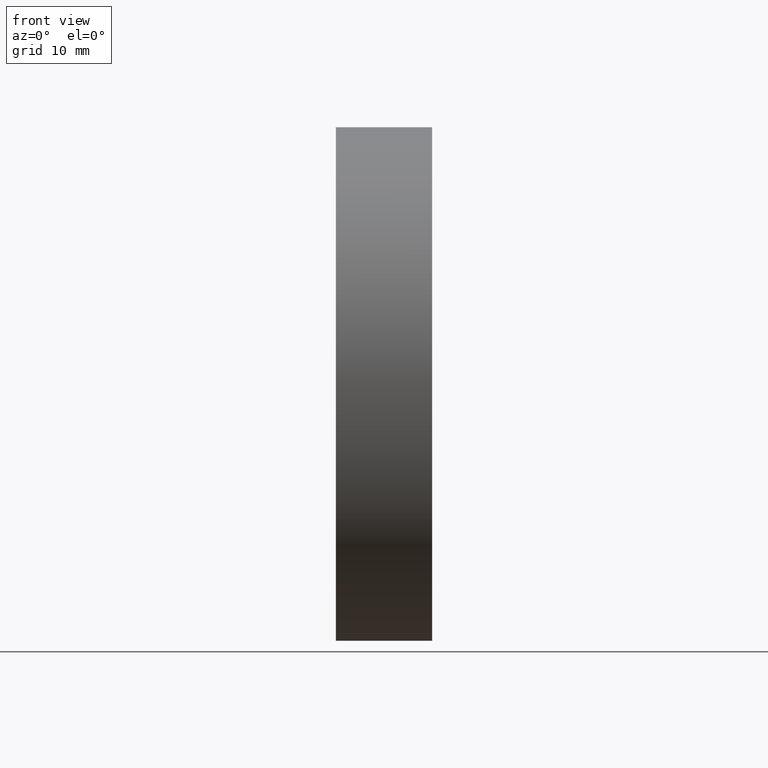
[diagram: clean part render]
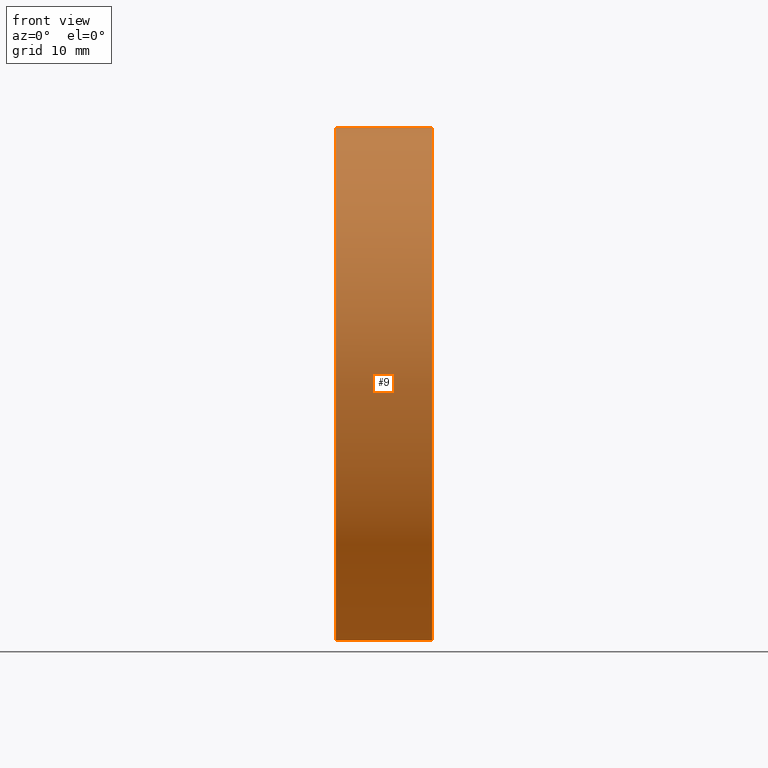
[diagram: same view with one face highlighted and labeled with its STEP entity id]
A machine part, front view. The second image highlights one B-rep face of the part: STEP entity #9.
In plain terms, the highlighted cylindrical surface (partial cylindrical patch) has radius 25.4 mm, axis along (-1, -0, -0).
Its self-contained STEP definition (entity closure, byte-faithful):
#9 = ADVANCED_FACE ( 'NONE', ( #109 ), #103, .T. ) ;
#14 = VERTEX_POINT ( 'NONE', #116 ) ;
#19 = DIRECTION ( 'NONE',  ( -1.000000000000000000, -0.0000000000000000000, -0.0000000000000000000 ) ) ;
#32 = LINE ( 'NONE', #135, #63 ) ;
#34 = DIRECTION ( 'NONE',  ( -1.000000000000000000, -0.0000000000000000000, -0.0000000000000000000 ) ) ;
#36 = EDGE_CURVE ( 'NONE', #86, #89, #141, .T. ) ;
#55 = DIRECTION ( 'NONE',  ( 0.0000000000000000000, 0.0000000000000000000, 1.000000000000000000 ) ) ;
#57 = LINE ( 'NONE', #136, #91 ) ;
#61 = CARTESIAN_POINT ( 'NONE',  ( 9.529578164691605100, 3.110602869834284000E-015, -25.40000000000005500 ) ) ;
#63 = VECTOR ( 'NONE', #19, 1000.000000000000000 ) ;
#66 = EDGE_CURVE ( 'NONE', #68, #14, #70, .T. ) ;
#68 = VERTEX_POINT ( 'NONE', #61 ) ;
#70 = CIRCLE ( 'NONE', #160, 25.40000000000006300 ) ;
#75 = CARTESIAN_POINT ( 'NONE',  ( 0.0000000000000000000, 0.0000000000000000000, 0.0000000000000000000 ) ) ;
#76 = CARTESIAN_POINT ( 'NONE',  ( 9.529578164691605100, 0.0000000000000000000, 0.0000000000000000000 ) ) ;
#80 = DIRECTION ( 'NONE',  ( -1.000000000000000000, -0.0000000000000000000, -0.0000000000000000000 ) ) ;
#86 = VERTEX_POINT ( 'NONE', #113 ) ;
#87 = AXIS2_PLACEMENT_3D ( 'NONE', #142, #80, #152 ) ;
#89 = VERTEX_POINT ( 'NONE', #151 ) ;
#91 = VECTOR ( 'NONE', #34, 1000.000000000000000 ) ;
#93 = ORIENTED_EDGE ( 'NONE', *, *, #66, .T. ) ;
#99 = EDGE_CURVE ( 'NONE', #14, #89, #57, .T. ) ;
#103 = CYLINDRICAL_SURFACE ( 'NONE', #87, 25.40000000000003100 ) ;
#109 = FACE_OUTER_BOUND ( 'NONE', #165, .T. ) ;
#113 = CARTESIAN_POINT ( 'NONE',  ( 0.0000000000000000000, 3.110602869834279200E-015, -25.39999999999999900 ) ) ;
#116 = CARTESIAN_POINT ( 'NONE',  ( 9.529578164691605100, 0.0000000000000000000, 25.40000000000005500 ) ) ;
#119 = ORIENTED_EDGE ( 'NONE', *, *, #99, .T. ) ;
#121 = DIRECTION ( 'NONE',  ( -1.000000000000000000, -0.0000000000000000000, -0.0000000000000000000 ) ) ;
#132 = EDGE_CURVE ( 'NONE', #68, #86, #32, .T. ) ;
#135 = CARTESIAN_POINT ( 'NONE',  ( 0.0000000000000000000, 3.110602869834280800E-015, -25.40000000000003100 ) ) ;
#136 = CARTESIAN_POINT ( 'NONE',  ( 0.0000000000000000000, 0.0000000000000000000, 25.40000000000003100 ) ) ;
#140 = DIRECTION ( 'NONE',  ( -1.000000000000000000, -0.0000000000000000000, -0.0000000000000000000 ) ) ;
#141 = CIRCLE ( 'NONE', #143, 25.39999999999999900 ) ;
#142 = CARTESIAN_POINT ( 'NONE',  ( 0.0000000000000000000, 0.0000000000000000000, 0.0000000000000000000 ) ) ;
#143 = AXIS2_PLACEMENT_3D ( 'NONE', #75, #121, #156 ) ;
#149 = ORIENTED_EDGE ( 'NONE', *, *, #132, .F. ) ;
#151 = CARTESIAN_POINT ( 'NONE',  ( 0.0000000000000000000, 0.0000000000000000000, 25.39999999999999900 ) ) ;
#152 = DIRECTION ( 'NONE',  ( 0.0000000000000000000, 0.0000000000000000000, 1.000000000000000000 ) ) ;
#156 = DIRECTION ( 'NONE',  ( 0.0000000000000000000, 0.0000000000000000000, 1.000000000000000000 ) ) ;
#158 = ORIENTED_EDGE ( 'NONE', *, *, #36, .F. ) ;
#160 = AXIS2_PLACEMENT_3D ( 'NONE', #76, #140, #55 ) ;
#165 = EDGE_LOOP ( 'NONE', ( #149, #93, #119, #158 ) ) ;